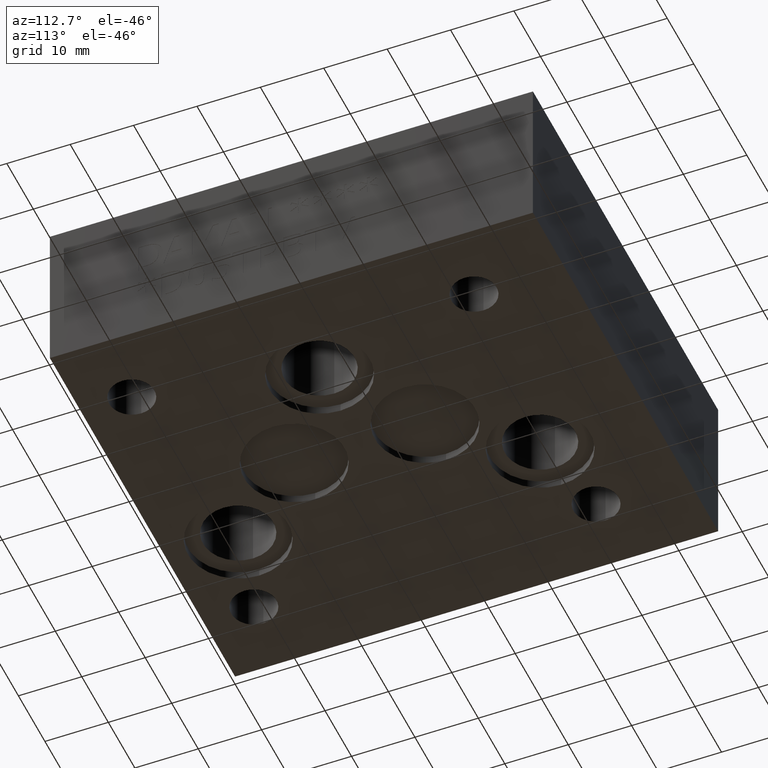
[diagram: clean part render]
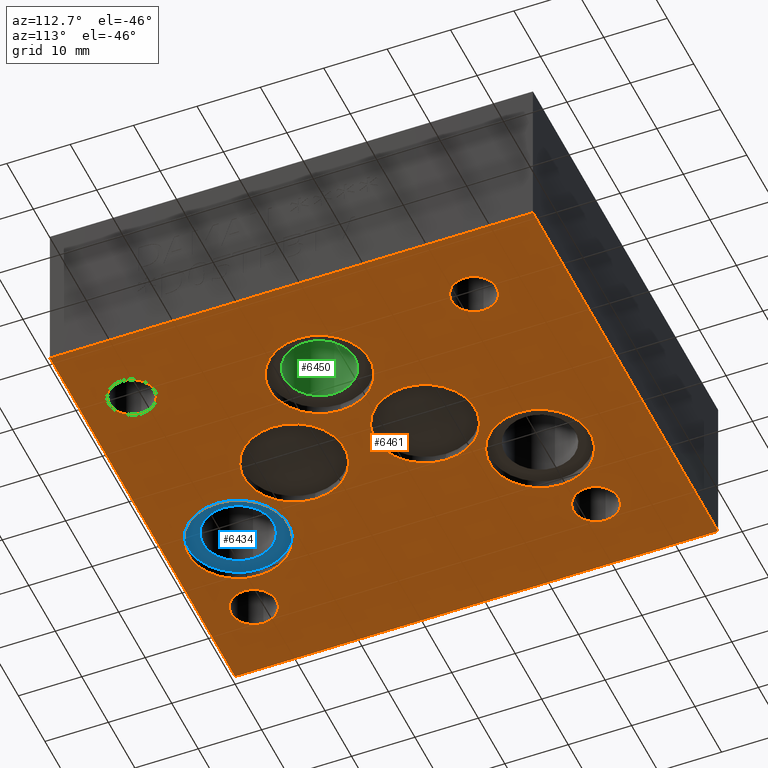
[diagram: same view with three faces highlighted in distinct colors, each labeled with its STEP entity id]
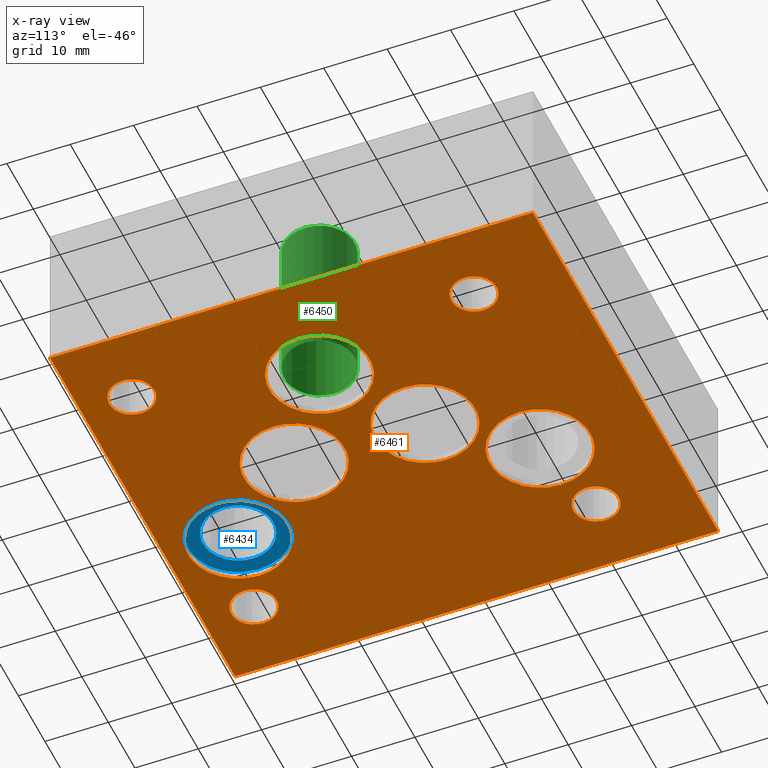
[diagram: x-ray of the same camera — body ghosted, the three highlighted faces saturated]
A machine part, auxiliary view with three faces highlighted in distinct colors.
The next image is the same camera in x-ray (body ghosted, the three faces saturated) — at least one of them is partly hidden behind the body in this view.
Their STEP definitions:

[orange] entity #6461 — the highlighted planar face has unit normal (0, 0, 1).
#23=CIRCLE('',#6696,7.9375);
#24=CIRCLE('',#6697,7.9375);
#27=CIRCLE('',#6702,7.9375);
#28=CIRCLE('',#6703,7.9375);
#34=CIRCLE('',#6712,7.9375);
#35=CIRCLE('',#6713,7.9375);
#39=CIRCLE('',#6719,7.9375);
#40=CIRCLE('',#6720,7.9375);
#46=CIRCLE('',#6729,7.9375);
#47=CIRCLE('',#6730,7.9375);
#53=CIRCLE('',#6740,3.5687);
#54=CIRCLE('',#6741,3.5687);
#57=CIRCLE('',#6746,3.5687);
#58=CIRCLE('',#6747,3.5687);
#60=CIRCLE('',#6751,3.5687);
#61=CIRCLE('',#6752,3.5687);
#84=CIRCLE('',#6785,3.5687);
#85=CIRCLE('',#6786,3.5687);
#139=FACE_BOUND('',#1021,.T.);
#140=FACE_BOUND('',#1022,.T.);
#141=FACE_BOUND('',#1023,.T.);
#142=FACE_BOUND('',#1024,.T.);
#143=FACE_BOUND('',#1025,.T.);
#144=FACE_BOUND('',#1026,.T.);
#145=FACE_BOUND('',#1027,.T.);
#146=FACE_BOUND('',#1028,.T.);
#147=FACE_BOUND('',#1029,.T.);
#665=FACE_OUTER_BOUND('',#1020,.T.);
#1020=EDGE_LOOP('',(#5616,#5617,#5618,#5619));
#1021=EDGE_LOOP('',(#5620,#5621));
#1022=EDGE_LOOP('',(#5622,#5623));
#1023=EDGE_LOOP('',(#5624,#5625));
#1024=EDGE_LOOP('',(#5626,#5627));
#1025=EDGE_LOOP('',(#5628,#5629));
#1026=EDGE_LOOP('',(#5630,#5631));
#1027=EDGE_LOOP('',(#5632,#5633));
#1028=EDGE_LOOP('',(#5634,#5635));
#1029=EDGE_LOOP('',(#5636,#5637));
#1298=LINE('',#9601,#1981);
#1705=LINE('',#10880,#2388);
#1709=LINE('',#10887,#2392);
#1711=LINE('',#10891,#2394);
#1981=VECTOR('',#7225,10.);
#2388=VECTOR('',#8100,10.);
#2392=VECTOR('',#8106,10.);
#2394=VECTOR('',#8112,10.);
#2648=VERTEX_POINT('',#9599);
#2649=VERTEX_POINT('',#9600);
#2914=VERTEX_POINT('',#10514);
#2915=VERTEX_POINT('',#10515);
#2918=VERTEX_POINT('',#10525);
#2919=VERTEX_POINT('',#10526);
#2925=VERTEX_POINT('',#10543);
#2926=VERTEX_POINT('',#10544);
#2930=VERTEX_POINT('',#10556);
#2931=VERTEX_POINT('',#10557);
#2939=VERTEX_POINT('',#10604);
#2940=VERTEX_POINT('',#10605);
#2948=VERTEX_POINT('',#10669);
#2949=VERTEX_POINT('',#10670);
#2955=VERTEX_POINT('',#10726);
#2956=VERTEX_POINT('',#10727);
#2961=VERTEX_POINT('',#10781);
#2962=VERTEX_POINT('',#10782);
#2986=VERTEX_POINT('',#10870);
#2987=VERTEX_POINT('',#10872);
#2988=VERTEX_POINT('',#10878);
#2989=VERTEX_POINT('',#10879);
#3370=EDGE_CURVE('',#2648,#2649,#1298,.T.);
#3767=EDGE_CURVE('',#2914,#2915,#23,.T.);
#3768=EDGE_CURVE('',#2915,#2914,#24,.T.);
#3772=EDGE_CURVE('',#2918,#2919,#27,.T.);
#3773=EDGE_CURVE('',#2919,#2918,#28,.T.);
#3780=EDGE_CURVE('',#2925,#2926,#34,.T.);
#3781=EDGE_CURVE('',#2926,#2925,#35,.T.);
#3786=EDGE_CURVE('',#2930,#2931,#39,.T.);
#3787=EDGE_CURVE('',#2931,#2930,#40,.T.);
#3796=EDGE_CURVE('',#2939,#2940,#46,.T.);
#3797=EDGE_CURVE('',#2940,#2939,#47,.T.);
#3810=EDGE_CURVE('',#2948,#2949,#53,.T.);
#3811=EDGE_CURVE('',#2949,#2948,#54,.T.);
#3819=EDGE_CURVE('',#2955,#2956,#57,.T.);
#3820=EDGE_CURVE('',#2956,#2955,#58,.T.);
#3827=EDGE_CURVE('',#2961,#2962,#60,.T.);
#3828=EDGE_CURVE('',#2962,#2961,#61,.T.);
#3864=EDGE_CURVE('',#2987,#2986,#84,.T.);
#3865=EDGE_CURVE('',#2986,#2987,#85,.T.);
#3866=EDGE_CURVE('',#2988,#2989,#1705,.T.);
#3870=EDGE_CURVE('',#2649,#2988,#1709,.T.);
#3872=EDGE_CURVE('',#2989,#2648,#1711,.T.);
#5616=ORIENTED_EDGE('',*,*,#3872,.F.);
#5617=ORIENTED_EDGE('',*,*,#3866,.F.);
#5618=ORIENTED_EDGE('',*,*,#3870,.F.);
#5619=ORIENTED_EDGE('',*,*,#3370,.F.);
#5620=ORIENTED_EDGE('',*,*,#3767,.T.);
#5621=ORIENTED_EDGE('',*,*,#3768,.T.);
#5622=ORIENTED_EDGE('',*,*,#3772,.T.);
#5623=ORIENTED_EDGE('',*,*,#3773,.T.);
#5624=ORIENTED_EDGE('',*,*,#3780,.T.);
#5625=ORIENTED_EDGE('',*,*,#3781,.T.);
#5626=ORIENTED_EDGE('',*,*,#3786,.T.);
#5627=ORIENTED_EDGE('',*,*,#3787,.T.);
#5628=ORIENTED_EDGE('',*,*,#3796,.T.);
#5629=ORIENTED_EDGE('',*,*,#3797,.T.);
#5630=ORIENTED_EDGE('',*,*,#3810,.T.);
#5631=ORIENTED_EDGE('',*,*,#3811,.T.);
#5632=ORIENTED_EDGE('',*,*,#3864,.T.);
#5633=ORIENTED_EDGE('',*,*,#3865,.T.);
#5634=ORIENTED_EDGE('',*,*,#3819,.T.);
#5635=ORIENTED_EDGE('',*,*,#3820,.T.);
#5636=ORIENTED_EDGE('',*,*,#3827,.T.);
#5637=ORIENTED_EDGE('',*,*,#3828,.T.);
#5867=PLANE('',#6794);
#6461=ADVANCED_FACE('',(#665,#139,#140,#141,#142,#143,#144,#145,#146,#147),
#5867,.F.);
#6696=AXIS2_PLACEMENT_3D('',#10516,#7886,#7887);
#6697=AXIS2_PLACEMENT_3D('',#10517,#7888,#7889);
#6702=AXIS2_PLACEMENT_3D('',#10527,#7899,#7900);
#6703=AXIS2_PLACEMENT_3D('',#10528,#7901,#7902);
#6712=AXIS2_PLACEMENT_3D('',#10545,#7920,#7921);
#6713=AXIS2_PLACEMENT_3D('',#10546,#7922,#7923);
#6719=AXIS2_PLACEMENT_3D('',#10558,#7935,#7936);
#6720=AXIS2_PLACEMENT_3D('',#10559,#7937,#7938);
#6729=AXIS2_PLACEMENT_3D('',#10606,#7956,#7957);
#6730=AXIS2_PLACEMENT_3D('',#10607,#7958,#7959);
#6740=AXIS2_PLACEMENT_3D('',#10671,#7983,#7984);
#6741=AXIS2_PLACEMENT_3D('',#10672,#7985,#7986);
#6746=AXIS2_PLACEMENT_3D('',#10728,#7998,#7999);
#6747=AXIS2_PLACEMENT_3D('',#10729,#8000,#8001);
#6751=AXIS2_PLACEMENT_3D('',#10783,#8011,#8012);
#6752=AXIS2_PLACEMENT_3D('',#10784,#8013,#8014);
#6785=AXIS2_PLACEMENT_3D('',#10873,#8090,#8091);
#6786=AXIS2_PLACEMENT_3D('',#10874,#8092,#8093);
#6794=AXIS2_PLACEMENT_3D('',#10894,#8116,#8117);
#7225=DIRECTION('',(0.,1.,0.));
#7886=DIRECTION('center_axis',(0.,0.,1.));
#7887=DIRECTION('ref_axis',(1.,0.,0.));
#7888=DIRECTION('center_axis',(0.,0.,1.));
#7889=DIRECTION('ref_axis',(1.,0.,0.));
#7899=DIRECTION('center_axis',(0.,0.,1.));
#7900=DIRECTION('ref_axis',(1.,0.,0.));
#7901=DIRECTION('center_axis',(0.,0.,1.));
#7902=DIRECTION('ref_axis',(1.,0.,0.));
#7920=DIRECTION('center_axis',(0.,0.,1.));
#7921=DIRECTION('ref_axis',(1.,0.,0.));
#7922=DIRECTION('center_axis',(0.,0.,1.));
#7923=DIRECTION('ref_axis',(1.,0.,0.));
#7935=DIRECTION('center_axis',(0.,0.,1.));
#7936=DIRECTION('ref_axis',(1.,0.,0.));
#7937=DIRECTION('center_axis',(0.,0.,1.));
#7938=DIRECTION('ref_axis',(1.,0.,0.));
#7956=DIRECTION('center_axis',(0.,0.,1.));
#7957=DIRECTION('ref_axis',(1.,0.,0.));
#7958=DIRECTION('center_axis',(0.,0.,1.));
#7959=DIRECTION('ref_axis',(1.,0.,0.));
#7983=DIRECTION('center_axis',(0.,0.,1.));
#7984=DIRECTION('ref_axis',(1.,0.,0.));
#7985=DIRECTION('center_axis',(0.,0.,1.));
#7986=DIRECTION('ref_axis',(1.,0.,0.));
#7998=DIRECTION('center_axis',(0.,0.,1.));
#7999=DIRECTION('ref_axis',(1.,0.,0.));
#8000=DIRECTION('center_axis',(0.,0.,1.));
#8001=DIRECTION('ref_axis',(1.,0.,0.));
#8011=DIRECTION('center_axis',(0.,0.,1.));
#8012=DIRECTION('ref_axis',(1.,0.,0.));
#8013=DIRECTION('center_axis',(0.,0.,1.));
#8014=DIRECTION('ref_axis',(1.,0.,0.));
#8090=DIRECTION('center_axis',(0.,0.,1.));
#8091=DIRECTION('ref_axis',(1.,0.,0.));
#8092=DIRECTION('center_axis',(0.,0.,1.));
#8093=DIRECTION('ref_axis',(1.,0.,0.));
#8100=DIRECTION('',(0.,-1.,0.));
#8106=DIRECTION('',(-1.,0.,0.));
#8112=DIRECTION('',(1.,0.,0.));
#8116=DIRECTION('center_axis',(0.,0.,1.));
#8117=DIRECTION('ref_axis',(1.,0.,0.));
#9599=CARTESIAN_POINT('',(69.85,0.,0.));
#9600=CARTESIAN_POINT('',(69.85,76.2,0.));
#9601=CARTESIAN_POINT('',(69.85,0.,0.));
#10514=CARTESIAN_POINT('',(44.4627,45.2374,0.));
#10515=CARTESIAN_POINT('',(28.5877,45.2374,0.));
#10516=CARTESIAN_POINT('Origin',(36.5252,45.2374,0.));
#10517=CARTESIAN_POINT('Origin',(36.5252,45.2374,0.));
#10525=CARTESIAN_POINT('',(44.4881,24.6126,0.));
#10526=CARTESIAN_POINT('',(28.6131,24.6126,0.));
#10527=CARTESIAN_POINT('Origin',(36.5506,24.6126,0.));
#10528=CARTESIAN_POINT('Origin',(36.5506,24.6126,0.));
#10543=CARTESIAN_POINT('',(33.3629,58.7502,0.));
#10544=CARTESIAN_POINT('',(17.4879,58.7502,0.));
#10545=CARTESIAN_POINT('Origin',(25.4254,58.7502,0.));
#10546=CARTESIAN_POINT('Origin',(25.4254,58.7502,0.));
#10556=CARTESIAN_POINT('',(59.5757,34.925,0.));
#10557=CARTESIAN_POINT('',(43.7007,34.925,0.));
#10558=CARTESIAN_POINT('Origin',(51.6382,34.925,0.));
#10559=CARTESIAN_POINT('Origin',(51.6382,34.925,0.));
#10604=CARTESIAN_POINT('',(33.3629,11.1252,0.));
#10605=CARTESIAN_POINT('',(17.4879,11.1252,0.));
#10606=CARTESIAN_POINT('Origin',(25.4254,11.1252,0.));
#10607=CARTESIAN_POINT('Origin',(25.4254,11.1252,0.));
#10669=CARTESIAN_POINT('',(61.5315,7.9502,0.));
#10670=CARTESIAN_POINT('',(54.3941,7.9502,0.));
#10671=CARTESIAN_POINT('Origin',(57.9628,7.9502,0.));
#10672=CARTESIAN_POINT('Origin',(57.9628,7.9502,0.));
#10726=CARTESIAN_POINT('',(61.5315,61.9379,0.));
#10727=CARTESIAN_POINT('',(54.3941,61.9379,0.));
#10728=CARTESIAN_POINT('Origin',(57.9628,61.9379,0.));
#10729=CARTESIAN_POINT('Origin',(57.9628,61.9379,0.));
#10781=CARTESIAN_POINT('',(15.494,7.9502,0.));
#10782=CARTESIAN_POINT('',(8.3566,7.9502,0.));
#10783=CARTESIAN_POINT('Origin',(11.9253,7.9502,0.));
#10784=CARTESIAN_POINT('Origin',(11.9253,7.9502,0.));
#10870=CARTESIAN_POINT('',(8.3439,61.9252,0.));
#10872=CARTESIAN_POINT('',(15.4813,61.9252,0.));
#10873=CARTESIAN_POINT('Origin',(11.9126,61.9252,0.));
#10874=CARTESIAN_POINT('Origin',(11.9126,61.9252,0.));
#10878=CARTESIAN_POINT('',(0.,76.2,0.));
#10879=CARTESIAN_POINT('',(0.,0.,0.));
#10880=CARTESIAN_POINT('',(0.,76.2,0.));
#10887=CARTESIAN_POINT('',(69.85,76.2,0.));
#10891=CARTESIAN_POINT('',(0.,0.,0.));
#10894=CARTESIAN_POINT('Origin',(34.925,38.1,0.));

[blue] entity #6434 — the highlighted planar face has unit normal (0, 0, -1).
#43=CIRCLE('',#6725,7.9375);
#44=CIRCLE('',#6726,7.9375);
#45=CIRCLE('',#6727,5.5626);
#130=FACE_BOUND('',#985,.T.);
#638=FACE_OUTER_BOUND('',#984,.T.);
#984=EDGE_LOOP('',(#5455,#5456));
#985=EDGE_LOOP('',(#5457));
#2936=VERTEX_POINT('',#10597);
#2937=VERTEX_POINT('',#10598);
#2938=VERTEX_POINT('',#10601);
#3793=EDGE_CURVE('',#2936,#2937,#43,.T.);
#3794=EDGE_CURVE('',#2937,#2936,#44,.T.);
#3795=EDGE_CURVE('',#2938,#2938,#45,.T.);
#5455=ORIENTED_EDGE('',*,*,#3793,.T.);
#5456=ORIENTED_EDGE('',*,*,#3794,.T.);
#5457=ORIENTED_EDGE('',*,*,#3795,.F.);
#5861=PLANE('',#6724);
#6434=ADVANCED_FACE('',(#638,#130),#5861,.T.);
#6724=AXIS2_PLACEMENT_3D('',#10596,#7946,#7947);
#6725=AXIS2_PLACEMENT_3D('',#10599,#7948,#7949);
#6726=AXIS2_PLACEMENT_3D('',#10600,#7950,#7951);
#6727=AXIS2_PLACEMENT_3D('',#10602,#7952,#7953);
#7946=DIRECTION('center_axis',(0.,0.,-1.));
#7947=DIRECTION('ref_axis',(1.,0.,0.));
#7948=DIRECTION('center_axis',(0.,0.,-1.));
#7949=DIRECTION('ref_axis',(1.,0.,0.));
#7950=DIRECTION('center_axis',(0.,0.,-1.));
#7951=DIRECTION('ref_axis',(1.,0.,0.));
#7952=DIRECTION('center_axis',(0.,0.,-1.));
#7953=DIRECTION('ref_axis',(1.,0.,0.));
#10596=CARTESIAN_POINT('Origin',(25.4254,11.1252,1.3208));
#10597=CARTESIAN_POINT('',(33.3629,11.1252,1.3208));
#10598=CARTESIAN_POINT('',(17.4879,11.1252,1.3208));
#10599=CARTESIAN_POINT('Origin',(25.4254,11.1252,1.3208));
#10600=CARTESIAN_POINT('Origin',(25.4254,11.1252,1.3208));
#10601=CARTESIAN_POINT('',(19.8628,11.1252,1.3208));
#10602=CARTESIAN_POINT('Origin',(25.4254,11.1252,1.3208));

[green] entity #6450 — the highlighted cylindrical surface (bore or boss wall) has radius 5.5626 mm, axis along (0, 0, 1).
#38=CIRCLE('',#6717,5.5626);
#78=CIRCLE('',#6776,5.5626);
#79=CIRCLE('',#6777,5.5626);
#100=CYLINDRICAL_SURFACE('',#6775,5.5626);
#654=FACE_OUTER_BOUND('',#1001,.T.);
#1001=EDGE_LOOP('',(#5555,#5556,#5557,#5558,#5559));
#1702=LINE('',#10857,#2385);
#2385=VECTOR('',#8073,5.5626);
#2929=VERTEX_POINT('',#10553);
#2980=VERTEX_POINT('',#10853);
#2981=VERTEX_POINT('',#10854);
#3785=EDGE_CURVE('',#2929,#2929,#38,.T.);
#3855=EDGE_CURVE('',#2980,#2981,#78,.T.);
#3856=EDGE_CURVE('',#2981,#2980,#79,.T.);
#3857=EDGE_CURVE('',#2981,#2929,#1702,.T.);
#5555=ORIENTED_EDGE('',*,*,#3855,.F.);
#5556=ORIENTED_EDGE('',*,*,#3856,.F.);
#5557=ORIENTED_EDGE('',*,*,#3857,.T.);
#5558=ORIENTED_EDGE('',*,*,#3785,.T.);
#5559=ORIENTED_EDGE('',*,*,#3857,.F.);
#6450=ADVANCED_FACE('',(#654),#100,.F.);
#6717=AXIS2_PLACEMENT_3D('',#10554,#7931,#7932);
#6775=AXIS2_PLACEMENT_3D('',#10852,#8067,#8068);
#6776=AXIS2_PLACEMENT_3D('',#10855,#8069,#8070);
#6777=AXIS2_PLACEMENT_3D('',#10856,#8071,#8072);
#7931=DIRECTION('center_axis',(0.,0.,-1.));
#7932=DIRECTION('ref_axis',(1.,0.,0.));
#8067=DIRECTION('center_axis',(0.,0.,1.));
#8068=DIRECTION('ref_axis',(1.,0.,0.));
#8069=DIRECTION('center_axis',(0.,0.,-1.));
#8070=DIRECTION('ref_axis',(1.,0.,0.));
#8071=DIRECTION('center_axis',(0.,0.,-1.));
#8072=DIRECTION('ref_axis',(1.,0.,0.));
#8073=DIRECTION('',(0.,0.,-1.));
#10553=CARTESIAN_POINT('',(46.0756,34.925,1.3208));
#10554=CARTESIAN_POINT('Origin',(51.6382,34.925,1.3208));
#10852=CARTESIAN_POINT('Origin',(51.6382,34.925,17.907));
#10853=CARTESIAN_POINT('',(57.2008,34.925,25.4));
#10854=CARTESIAN_POINT('',(46.0756,34.925,25.4));
#10855=CARTESIAN_POINT('Origin',(51.6382,34.925,25.4));
#10856=CARTESIAN_POINT('Origin',(51.6382,34.925,25.4));
#10857=CARTESIAN_POINT('',(46.0756,34.925,17.907));